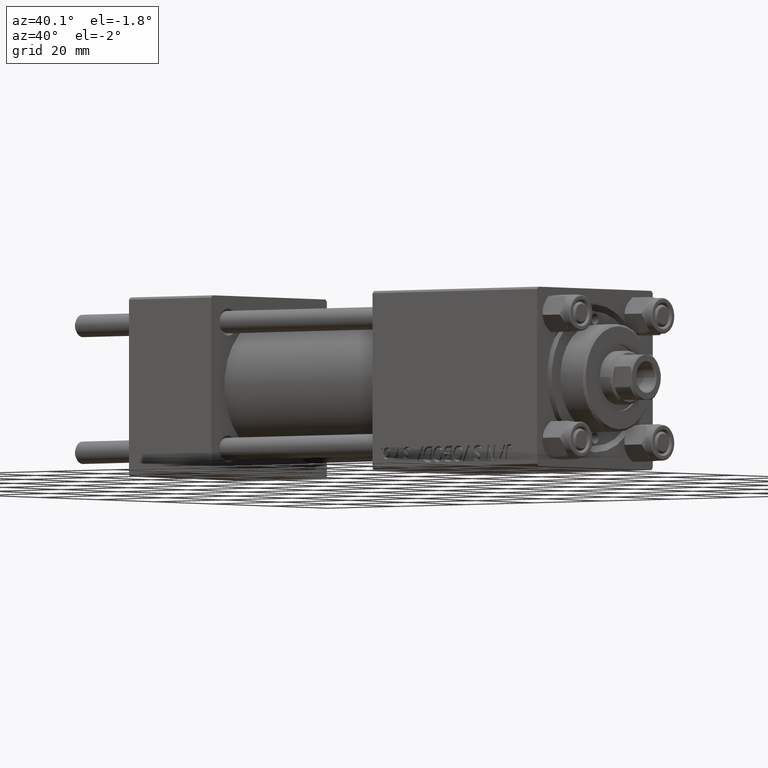
[diagram: clean part render]
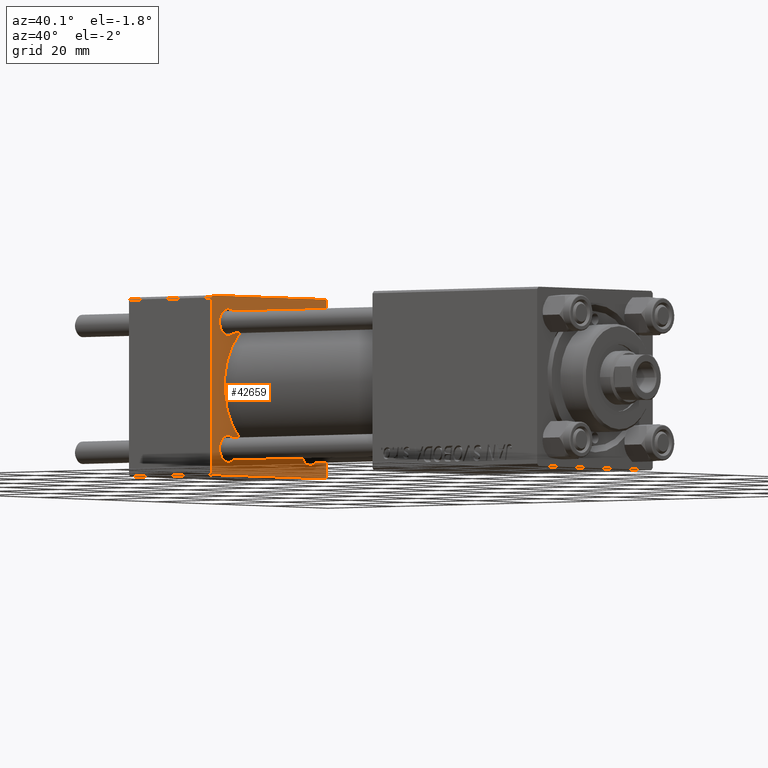
[diagram: same view with one face highlighted and labeled with its STEP entity id]
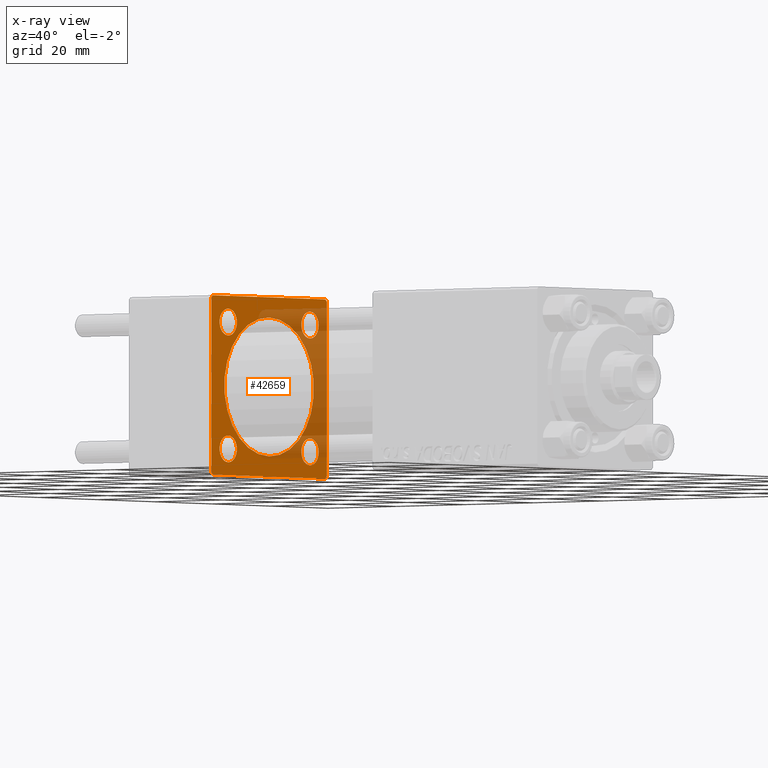
[diagram: x-ray of the same camera — body ghosted, the highlighted face saturated]
A machine part, auxiliary view. The second image highlights one B-rep face of the part: STEP entity #42659.
The next image is the same camera in x-ray: the body ghosted, the highlighted face saturated — about 34% of this face is hidden behind the body in this view.
In plain terms, the highlighted planar face has unit normal (-1, 0, 0).
Its self-contained STEP definition (entity closure, byte-faithful):
#25 = EDGE_CURVE ( 'NONE', #33853, #251, #40901, .T. ) ;
#198 = AXIS2_PLACEMENT_3D ( 'NONE', #40318, #24924, #17594 ) ;
#251 = VERTEX_POINT ( 'NONE', #15197 ) ;
#301 = AXIS2_PLACEMENT_3D ( 'NONE', #13493, #1864, #47820 ) ;
#416 = DIRECTION ( 'NONE',  ( -0.000000000000000000, 0.7071067811865524577, 0.7071067811865426878 ) ) ;
#962 = CARTESIAN_POINT ( 'NONE',  ( 24.00000000000000000, -14.14999999999999503, -14.15000000000000391 ) ) ;
#1864 = DIRECTION ( 'NONE',  ( -1.000000000000000000, -0.000000000000000000, -0.000000000000000000 ) ) ;
#2183 = AXIS2_PLACEMENT_3D ( 'NONE', #28085, #24044, #31383 ) ;
#2193 = VERTEX_POINT ( 'NONE', #12500 ) ;
#2263 = AXIS2_PLACEMENT_3D ( 'NONE', #38282, #49650, #19346 ) ;
#2287 = ORIENTED_EDGE ( 'NONE', *, *, #25, .T. ) ;
#2458 = VECTOR ( 'NONE', #5488, 1000.000000000000000 ) ;
#3150 = EDGE_CURVE ( 'NONE', #16890, #39164, #43312, .T. ) ;
#3494 = LINE ( 'NONE', #18653, #40939 ) ;
#3591 = LINE ( 'NONE', #4315, #17868 ) ;
#3809 = AXIS2_PLACEMENT_3D ( 'NONE', #32140, #7737, #28351 ) ;
#4315 = CARTESIAN_POINT ( 'NONE',  ( 24.00000000000000000, -20.00000000000000355, 19.99999999999998934 ) ) ;
#4320 = EDGE_CURVE ( 'NONE', #12445, #48955, #41738, .T. ) ;
#4734 = CARTESIAN_POINT ( 'NONE',  ( 24.00000000000000000, 14.14999999999999858, -14.15000000000000036 ) ) ;
#4925 = DIRECTION ( 'NONE',  ( 0.000000000000000000, 0.000000000000000000, 1.000000000000000000 ) ) ;
#5271 = CARTESIAN_POINT ( 'NONE',  ( 24.00000000000000000, 14.14999999999999858, -17.14999999999997726 ) ) ;
#5387 = DIRECTION ( 'NONE',  ( 0.000000000000000000, 0.000000000000000000, 1.000000000000000000 ) ) ;
#5400 = ORIENTED_EDGE ( 'NONE', *, *, #30387, .T. ) ;
#5488 = DIRECTION ( 'NONE',  ( 0.000000000000000000, 0.000000000000000000, -1.000000000000000000 ) ) ;
#5963 = EDGE_CURVE ( 'NONE', #35959, #47262, #28863, .T. ) ;
#5966 = DIRECTION ( 'NONE',  ( -0.000000000000000000, -0.7071067811865500152, -0.7071067811865451302 ) ) ;
#6555 = EDGE_CURVE ( 'NONE', #26517, #10477, #37255, .T. ) ;
#7240 = CARTESIAN_POINT ( 'NONE',  ( 24.00000000000000000, 1.898202538678397557E-15, -15.50000000000000000 ) ) ;
#7288 = VERTEX_POINT ( 'NONE', #40114 ) ;
#7737 = DIRECTION ( 'NONE',  ( -1.000000000000000000, -0.000000000000000000, -0.000000000000000000 ) ) ;
#7983 = CARTESIAN_POINT ( 'NONE',  ( 24.00000000000000000, -20.00000000000000000, -19.49999999999999645 ) ) ;
#8122 = FACE_BOUND ( 'NONE', #24626, .T. ) ;
#8537 = CARTESIAN_POINT ( 'NONE',  ( 24.00000000000000000, -19.50000000000000711, -20.00000000000000000 ) ) ;
#8758 = EDGE_LOOP ( 'NONE', ( #9872, #44452 ) ) ;
#8966 = DIRECTION ( 'NONE',  ( 0.000000000000000000, -0.7071067811865425767, 0.7071067811865525687 ) ) ;
#9258 = CARTESIAN_POINT ( 'NONE',  ( 24.00000000000000000, 20.00000000000000000, 19.49999999999999289 ) ) ;
#9438 = VERTEX_POINT ( 'NONE', #43421 ) ;
#9747 = CARTESIAN_POINT ( 'NONE',  ( 24.00000000000000000, -20.00000000000000355, 19.49999999999998224 ) ) ;
#9872 = ORIENTED_EDGE ( 'NONE', *, *, #4320, .T. ) ;
#9952 = LINE ( 'NONE', #25357, #25986 ) ;
#10477 = VERTEX_POINT ( 'NONE', #38636 ) ;
#10760 = VERTEX_POINT ( 'NONE', #7983 ) ;
#10923 = FACE_BOUND ( 'NONE', #11061, .T. ) ;
#11049 = VERTEX_POINT ( 'NONE', #9258 ) ;
#11061 = EDGE_LOOP ( 'NONE', ( #2287, #23912 ) ) ;
#12445 = VERTEX_POINT ( 'NONE', #36391 ) ;
#12500 = CARTESIAN_POINT ( 'NONE',  ( 24.00000000000000000, -14.14999999999999503, -11.15000000000000391 ) ) ;
#12587 = LINE ( 'NONE', #47656, #2458 ) ;
#12812 = EDGE_CURVE ( 'NONE', #10760, #38788, #3494, .T. ) ;
#13493 = CARTESIAN_POINT ( 'NONE',  ( 24.00000000000000000, 14.14999999999999858, 14.15000000000000036 ) ) ;
#13564 = CIRCLE ( 'NONE', #2263, 15.50000000000000000 ) ;
#13826 = DIRECTION ( 'NONE',  ( 0.000000000000000000, 0.000000000000000000, 1.000000000000000000 ) ) ;
#14326 = EDGE_CURVE ( 'NONE', #39164, #16890, #13564, .T. ) ;
#14433 = AXIS2_PLACEMENT_3D ( 'NONE', #962, #20416, #27738 ) ;
#14879 = EDGE_CURVE ( 'NONE', #2193, #40786, #17624, .T. ) ;
#15197 = CARTESIAN_POINT ( 'NONE',  ( 24.00000000000000000, -14.14999999999999503, 17.15000000000000568 ) ) ;
#15554 = ORIENTED_EDGE ( 'NONE', *, *, #3150, .F. ) ;
#16117 = CARTESIAN_POINT ( 'NONE',  ( 24.00000000000000000, 14.14999999999999858, 14.15000000000000036 ) ) ;
#16890 = VERTEX_POINT ( 'NONE', #7240 ) ;
#16989 = AXIS2_PLACEMENT_3D ( 'NONE', #23516, #26317, #42224 ) ;
#17543 = AXIS2_PLACEMENT_3D ( 'NONE', #16117, #31514, #13826 ) ;
#17594 = DIRECTION ( 'NONE',  ( 0.000000000000000000, 0.000000000000000000, 1.000000000000000000 ) ) ;
#17624 = CIRCLE ( 'NONE', #14433, 3.000000000000000888 ) ;
#17821 = VECTOR ( 'NONE', #416, 1000.000000000000000 ) ;
#17868 = VECTOR ( 'NONE', #19732, 1000.000000000000000 ) ;
#18653 = CARTESIAN_POINT ( 'NONE',  ( 24.00000000000000000, -19.50000000000000711, -20.00000000000000000 ) ) ;
#18998 = PLANE ( 'NONE',  #16989 ) ;
#19346 = DIRECTION ( 'NONE',  ( 0.000000000000000000, 0.000000000000000000, 1.000000000000000000 ) ) ;
#19548 = LINE ( 'NONE', #27120, #27526 ) ;
#19672 = CARTESIAN_POINT ( 'NONE',  ( 24.00000000000000000, -14.14999999999999503, 11.15000000000000391 ) ) ;
#19732 = DIRECTION ( 'NONE',  ( 0.000000000000000000, 8.673617379884036705E-17, -1.000000000000000000 ) ) ;
#20416 = DIRECTION ( 'NONE',  ( -1.000000000000000000, -0.000000000000000000, -0.000000000000000000 ) ) ;
#22532 = FACE_BOUND ( 'NONE', #45968, .T. ) ;
#22596 = ORIENTED_EDGE ( 'NONE', *, *, #25786, .F. ) ;
#23516 = CARTESIAN_POINT ( 'NONE',  ( 24.00000000000000000, 0.000000000000000000, 0.000000000000000000 ) ) ;
#23912 = ORIENTED_EDGE ( 'NONE', *, *, #28367, .T. ) ;
#24044 = DIRECTION ( 'NONE',  ( 1.000000000000000000, 0.000000000000000000, 0.000000000000000000 ) ) ;
#24124 = DIRECTION ( 'NONE',  ( -1.000000000000000000, -0.000000000000000000, -0.000000000000000000 ) ) ;
#24626 = EDGE_LOOP ( 'NONE', ( #34145, #15554 ) ) ;
#24924 = DIRECTION ( 'NONE',  ( -1.000000000000000000, -0.000000000000000000, -0.000000000000000000 ) ) ;
#25357 = CARTESIAN_POINT ( 'NONE',  ( 24.00000000000000000, 19.50000000000000000, 20.00000000000000000 ) ) ;
#25751 = CARTESIAN_POINT ( 'NONE',  ( 24.00000000000000000, 20.00000000000000000, 20.00000000000000000 ) ) ;
#25786 = EDGE_CURVE ( 'NONE', #43850, #38788, #19548, .T. ) ;
#25986 = VECTOR ( 'NONE', #8966, 999.9999999999998863 ) ;
#26130 = ORIENTED_EDGE ( 'NONE', *, *, #6555, .T. ) ;
#26136 = EDGE_CURVE ( 'NONE', #10477, #10760, #3591, .T. ) ;
#26154 = AXIS2_PLACEMENT_3D ( 'NONE', #42319, #24124, #4925 ) ;
#26317 = DIRECTION ( 'NONE',  ( -1.000000000000000000, 0.000000000000000000, -0.000000000000000000 ) ) ;
#26517 = VERTEX_POINT ( 'NONE', #47375 ) ;
#27120 = CARTESIAN_POINT ( 'NONE',  ( 24.00000000000000000, 20.00000000000000000, -20.00000000000000711 ) ) ;
#27526 = VECTOR ( 'NONE', #34453, 1000.000000000000000 ) ;
#27738 = DIRECTION ( 'NONE',  ( 0.000000000000000000, 0.000000000000000000, 1.000000000000000000 ) ) ;
#27841 = EDGE_CURVE ( 'NONE', #11049, #9438, #9952, .T. ) ;
#28085 = CARTESIAN_POINT ( 'NONE',  ( 24.00000000000000000, 0.000000000000000000, 0.000000000000000000 ) ) ;
#28351 = DIRECTION ( 'NONE',  ( 0.000000000000000000, 0.000000000000000000, 1.000000000000000000 ) ) ;
#28367 = EDGE_CURVE ( 'NONE', #251, #33853, #37289, .T. ) ;
#28618 = DIRECTION ( 'NONE',  ( -1.000000000000000000, -0.000000000000000000, -0.000000000000000000 ) ) ;
#28863 = CIRCLE ( 'NONE', #45006, 2.999999999999976463 ) ;
#29655 = CARTESIAN_POINT ( 'NONE',  ( 24.00000000000000000, 0.000000000000000000, 15.50000000000000000 ) ) ;
#30387 = EDGE_CURVE ( 'NONE', #47262, #35959, #34135, .T. ) ;
#30870 = ORIENTED_EDGE ( 'NONE', *, *, #46032, .T. ) ;
#31383 = DIRECTION ( 'NONE',  ( 0.000000000000000000, 0.000000000000000000, 1.000000000000000000 ) ) ;
#31514 = DIRECTION ( 'NONE',  ( -1.000000000000000000, -0.000000000000000000, -0.000000000000000000 ) ) ;
#31675 = CARTESIAN_POINT ( 'NONE',  ( 24.00000000000000000, 19.50000000000000711, -20.00000000000000711 ) ) ;
#31712 = AXIS2_PLACEMENT_3D ( 'NONE', #4734, #46167, #38577 ) ;
#32140 = CARTESIAN_POINT ( 'NONE',  ( 24.00000000000000000, -14.14999999999999503, 14.15000000000000391 ) ) ;
#33853 = VERTEX_POINT ( 'NONE', #19672 ) ;
#34135 = CIRCLE ( 'NONE', #31712, 2.999999999999976463 ) ;
#34145 = ORIENTED_EDGE ( 'NONE', *, *, #14326, .F. ) ;
#34453 = DIRECTION ( 'NONE',  ( 0.000000000000000000, -1.000000000000000000, 1.734723475976807094E-16 ) ) ;
#34556 = VECTOR ( 'NONE', #5966, 1000.000000000000114 ) ;
#35024 = CIRCLE ( 'NONE', #26154, 3.000000000000000888 ) ;
#35271 = EDGE_LOOP ( 'NONE', ( #22596, #37266, #38255, #40783, #30870, #26130, #37128, #48093 ) ) ;
#35296 = ORIENTED_EDGE ( 'NONE', *, *, #5963, .T. ) ;
#35340 = CARTESIAN_POINT ( 'NONE',  ( 24.00000000000000000, 14.14999999999999858, 17.14999999999997726 ) ) ;
#35938 = CARTESIAN_POINT ( 'NONE',  ( 24.00000000000000000, 14.14999999999999858, -14.15000000000000036 ) ) ;
#35959 = VERTEX_POINT ( 'NONE', #48061 ) ;
#35984 = EDGE_CURVE ( 'NONE', #48955, #12445, #49517, .T. ) ;
#36391 = CARTESIAN_POINT ( 'NONE',  ( 24.00000000000000000, 14.14999999999999858, 11.15000000000002700 ) ) ;
#36620 = CARTESIAN_POINT ( 'NONE',  ( 24.00000000000000000, -14.14999999999999503, -17.15000000000000568 ) ) ;
#36699 = ORIENTED_EDGE ( 'NONE', *, *, #37558, .T. ) ;
#37128 = ORIENTED_EDGE ( 'NONE', *, *, #26136, .T. ) ;
#37255 = LINE ( 'NONE', #9747, #34556 ) ;
#37266 = ORIENTED_EDGE ( 'NONE', *, *, #43327, .T. ) ;
#37289 = CIRCLE ( 'NONE', #198, 3.000000000000000888 ) ;
#37558 = EDGE_CURVE ( 'NONE', #40786, #2193, #35024, .T. ) ;
#37952 = ORIENTED_EDGE ( 'NONE', *, *, #14879, .T. ) ;
#38078 = DIRECTION ( 'NONE',  ( 0.000000000000000000, 0.7071067811865401342, -0.7071067811865549002 ) ) ;
#38255 = ORIENTED_EDGE ( 'NONE', *, *, #38832, .F. ) ;
#38282 = CARTESIAN_POINT ( 'NONE',  ( 24.00000000000000000, 0.000000000000000000, 0.000000000000000000 ) ) ;
#38577 = DIRECTION ( 'NONE',  ( 0.000000000000000000, 0.000000000000000000, 1.000000000000000000 ) ) ;
#38636 = CARTESIAN_POINT ( 'NONE',  ( 24.00000000000000000, -20.00000000000000355, 19.49999999999998224 ) ) ;
#38788 = VERTEX_POINT ( 'NONE', #8537 ) ;
#38832 = EDGE_CURVE ( 'NONE', #11049, #7288, #12587, .T. ) ;
#39164 = VERTEX_POINT ( 'NONE', #29655 ) ;
#39547 = CARTESIAN_POINT ( 'NONE',  ( 24.00000000000000000, 20.00000000000000000, -19.50000000000002132 ) ) ;
#40114 = CARTESIAN_POINT ( 'NONE',  ( 24.00000000000000000, 20.00000000000000000, -19.50000000000002132 ) ) ;
#40318 = CARTESIAN_POINT ( 'NONE',  ( 24.00000000000000000, -14.14999999999999503, 14.15000000000000391 ) ) ;
#40783 = ORIENTED_EDGE ( 'NONE', *, *, #27841, .T. ) ;
#40786 = VERTEX_POINT ( 'NONE', #36620 ) ;
#40901 = CIRCLE ( 'NONE', #3809, 3.000000000000000888 ) ;
#40939 = VECTOR ( 'NONE', #38078, 1000.000000000000000 ) ;
#41738 = CIRCLE ( 'NONE', #17543, 2.999999999999976463 ) ;
#42224 = DIRECTION ( 'NONE',  ( -0.000000000000000000, 0.000000000000000000, 1.000000000000000000 ) ) ;
#42319 = CARTESIAN_POINT ( 'NONE',  ( 24.00000000000000000, -14.14999999999999503, -14.15000000000000391 ) ) ;
#42659 = ADVANCED_FACE ( 'NONE', ( #22532, #49788, #10923, #42706, #8122, #49550 ), #18998, .F. ) ;
#42706 = FACE_BOUND ( 'NONE', #8758, .T. ) ;
#43312 = CIRCLE ( 'NONE', #2183, 15.50000000000000000 ) ;
#43327 = EDGE_CURVE ( 'NONE', #43850, #7288, #47126, .T. ) ;
#43421 = CARTESIAN_POINT ( 'NONE',  ( 24.00000000000000000, 19.50000000000000000, 20.00000000000000000 ) ) ;
#43850 = VERTEX_POINT ( 'NONE', #31675 ) ;
#44452 = ORIENTED_EDGE ( 'NONE', *, *, #35984, .T. ) ;
#44927 = LINE ( 'NONE', #25751, #45316 ) ;
#45006 = AXIS2_PLACEMENT_3D ( 'NONE', #35938, #28618, #5387 ) ;
#45316 = VECTOR ( 'NONE', #49474, 1000.000000000000000 ) ;
#45968 = EDGE_LOOP ( 'NONE', ( #36699, #37952 ) ) ;
#46032 = EDGE_CURVE ( 'NONE', #9438, #26517, #44927, .T. ) ;
#46167 = DIRECTION ( 'NONE',  ( -1.000000000000000000, -0.000000000000000000, -0.000000000000000000 ) ) ;
#47126 = LINE ( 'NONE', #39547, #17821 ) ;
#47262 = VERTEX_POINT ( 'NONE', #5271 ) ;
#47375 = CARTESIAN_POINT ( 'NONE',  ( 24.00000000000000000, -19.49999999999999289, 19.99999999999998934 ) ) ;
#47656 = CARTESIAN_POINT ( 'NONE',  ( 24.00000000000000000, 20.00000000000000000, 20.00000000000000000 ) ) ;
#47820 = DIRECTION ( 'NONE',  ( 0.000000000000000000, 0.000000000000000000, 1.000000000000000000 ) ) ;
#48061 = CARTESIAN_POINT ( 'NONE',  ( 24.00000000000000000, 14.14999999999999858, -11.15000000000002700 ) ) ;
#48093 = ORIENTED_EDGE ( 'NONE', *, *, #12812, .T. ) ;
#48109 = EDGE_LOOP ( 'NONE', ( #5400, #35296 ) ) ;
#48955 = VERTEX_POINT ( 'NONE', #35340 ) ;
#49474 = DIRECTION ( 'NONE',  ( 0.000000000000000000, -1.000000000000000000, -2.602085213965210149E-16 ) ) ;
#49517 = CIRCLE ( 'NONE', #301, 2.999999999999976463 ) ;
#49550 = FACE_OUTER_BOUND ( 'NONE', #35271, .T. ) ;
#49650 = DIRECTION ( 'NONE',  ( 1.000000000000000000, 0.000000000000000000, 0.000000000000000000 ) ) ;
#49788 = FACE_BOUND ( 'NONE', #48109, .T. ) ;